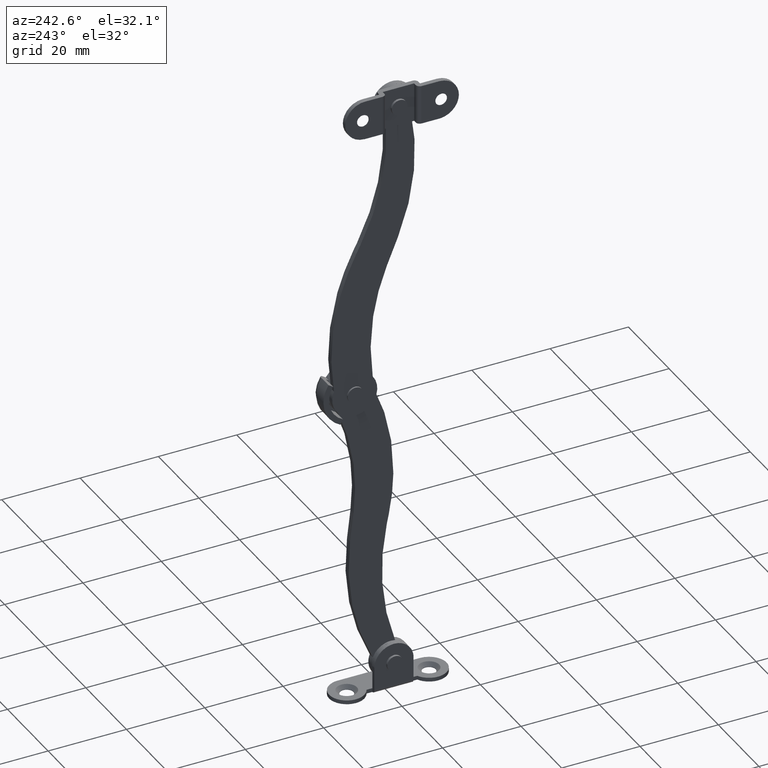
[diagram: clean part render]
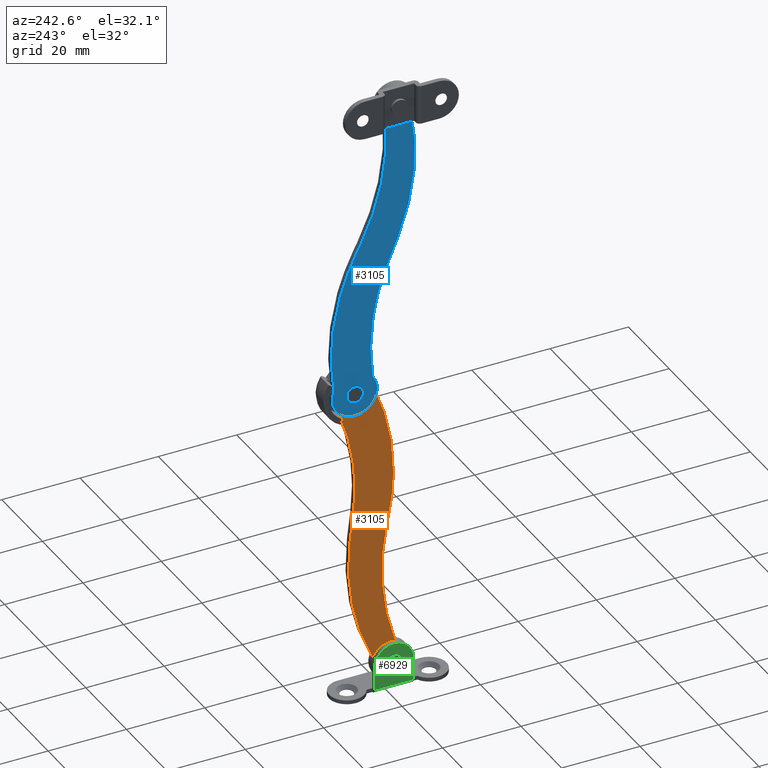
[diagram: same view with three faces highlighted in distinct colors, each labeled with its STEP entity id]
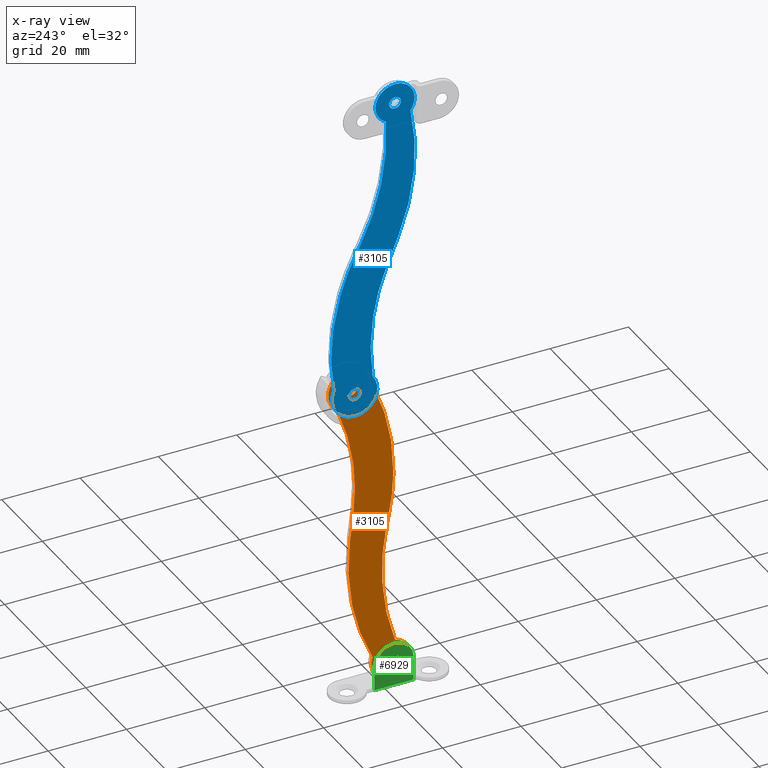
[diagram: x-ray of the same camera — body ghosted, the three highlighted faces saturated]
A machine part, auxiliary view with three faces highlighted in distinct colors.
The next image is the same camera in x-ray (body ghosted, the three faces saturated) — at least one of them is partly hidden behind the body in this view.
Their STEP definitions:

[orange] entity #3105 — the highlighted face is a freeform B-spline surface patch.
#2522=CARTESIAN_POINT('',(3.499999999999951,1.497202197543579,74.908457189238959));
#2523=VERTEX_POINT('',#2522);
#2529=CARTESIAN_POINT('',(3.499999999999950,0.0,73.500029999999995));
#2530=VERTEX_POINT('',#2529);
#2531=CARTESIAN_POINT('',(3.499999999999950,0.0,73.500029999999995));
#2532=CARTESIAN_POINT('',(3.499999999999950,1.411059097603771,73.500029999999981));
#2533=CARTESIAN_POINT('',(3.499999999999950,1.497202197543579,74.908457189238959));
#2541=(BOUNDED_CURVE()B_SPLINE_CURVE(2,(#2531,#2532,#2533),.UNSPECIFIED.,.F.,.U.)B_SPLINE_CURVE_WITH_KNOTS((3,3),(0.500000000000000,0.739332961905738),.UNSPECIFIED.)CURVE()GEOMETRIC_REPRESENTATION_ITEM()RATIONAL_B_SPLINE_CURVE((1.0,0.719603993677084,0.976072040952597))REPRESENTATION_ITEM(''));
#2542=EDGE_CURVE('',#2530,#2523,#2541,.T.);
#2544=CARTESIAN_POINT('',(3.499999999999950,-1.489514289480038,75.177081352535879));
#2545=VERTEX_POINT('',#2544);
#2546=CARTESIAN_POINT('',(3.499999999999951,-1.489514289480038,75.177081352535879));
#2547=CARTESIAN_POINT('',(3.499999999999950,-1.500000000000000,75.088866180034415));
#2548=CARTESIAN_POINT('',(3.499999999999950,-1.500000000000000,75.000029999999995));
#2549=CARTESIAN_POINT('',(3.499999999999949,-1.500000000000000,73.500029999999995));
#2550=CARTESIAN_POINT('',(3.499999999999950,0.0,73.500029999999995));
#2558=(BOUNDED_CURVE()B_SPLINE_CURVE(2,(#2546,#2547,#2548,#2549,#2550),.UNSPECIFIED.,.F.,.U.)B_SPLINE_CURVE_WITH_KNOTS((3,2,3),(0.229562473390671,0.250000000000000,0.500000000000000),.UNSPECIFIED.)CURVE()GEOMETRIC_REPRESENTATION_ITEM()RATIONAL_B_SPLINE_CURVE((0.956026753942933,0.976055948187232,1.0,0.707106781186548,1.0))REPRESENTATION_ITEM(''));
#2559=EDGE_CURVE('',#2545,#2530,#2558,.T.);
#2603=CARTESIAN_POINT('',(3.499999999999950,0.0,76.500029999999995));
#2604=VERTEX_POINT('',#2603);
#2605=CARTESIAN_POINT('',(3.499999999999950,0.0,76.500029999999995));
#2606=CARTESIAN_POINT('',(3.499999999999949,-1.332261787934946,76.500029999999995));
#2607=CARTESIAN_POINT('',(3.499999999999950,-1.489514289480038,75.177081352535879));
#2615=(BOUNDED_CURVE()B_SPLINE_CURVE(2,(#2605,#2606,#2607),.UNSPECIFIED.,.F.,.U.)B_SPLINE_CURVE_WITH_KNOTS((3,3),(0.0,0.229562473390671),.UNSPECIFIED.)CURVE()GEOMETRIC_REPRESENTATION_ITEM()RATIONAL_B_SPLINE_CURVE((1.0,0.731050832999315,0.956026753942933))REPRESENTATION_ITEM(''));
#2616=EDGE_CURVE('',#2604,#2545,#2615,.T.);
#2618=CARTESIAN_POINT('',(3.499999999999950,1.497202197543580,74.908457189238959));
#2619=CARTESIAN_POINT('',(3.499999999999950,1.500000000000000,74.954200853589271));
#2620=CARTESIAN_POINT('',(3.499999999999950,1.500000000000000,75.000029999999995));
#2621=CARTESIAN_POINT('',(3.499999999999949,1.500000000000000,76.500029999999995));
#2622=CARTESIAN_POINT('',(3.499999999999950,0.0,76.500029999999995));
#2630=(BOUNDED_CURVE()B_SPLINE_CURVE(2,(#2618,#2619,#2620,#2621,#2622),.UNSPECIFIED.,.F.,.U.)B_SPLINE_CURVE_WITH_KNOTS((3,2,3),(0.739332961905738,0.750000000000000,1.0),.UNSPECIFIED.)CURVE()GEOMETRIC_REPRESENTATION_ITEM()RATIONAL_B_SPLINE_CURVE((0.976072040952596,0.987502787509463,1.0,0.707106781186548,1.0))REPRESENTATION_ITEM(''));
#2631=EDGE_CURVE('',#2523,#2604,#2630,.T.);
#2708=CARTESIAN_POINT('',(3.499999999999950,11.768045197543380,-0.091572810761035));
#2709=VERTEX_POINT('',#2708);
#2715=CARTESIAN_POINT('',(3.499999999999950,10.270842999999800,-1.499999999999999));
#2716=VERTEX_POINT('',#2715);
#2717=CARTESIAN_POINT('',(3.499999999999950,10.270842999999800,-1.499999999999999));
#2718=CARTESIAN_POINT('',(3.499999999999950,11.681902097603571,-1.499999999999999));
#2719=CARTESIAN_POINT('',(3.499999999999950,11.768045197543380,-0.091572810761035));
#2727=(BOUNDED_CURVE()B_SPLINE_CURVE(2,(#2717,#2718,#2719),.UNSPECIFIED.,.F.,.U.)B_SPLINE_CURVE_WITH_KNOTS((3,3),(0.500000000000000,0.739332961905738),.UNSPECIFIED.)CURVE()GEOMETRIC_REPRESENTATION_ITEM()RATIONAL_B_SPLINE_CURVE((1.0,0.719603993677084,0.976072040952597))REPRESENTATION_ITEM(''));
#2728=EDGE_CURVE('',#2716,#2709,#2727,.T.);
#2730=CARTESIAN_POINT('',(3.499999999999950,8.781328710519759,0.177051352535860));
#2731=VERTEX_POINT('',#2730);
#2732=CARTESIAN_POINT('',(3.499999999999951,8.781328710519759,0.177051352535860));
#2733=CARTESIAN_POINT('',(3.499999999999951,8.770842999999799,0.088836180034409));
#2734=CARTESIAN_POINT('',(3.499999999999950,8.770842999999799,8.881784E-016));
#2735=CARTESIAN_POINT('',(3.499999999999949,8.770842999999799,-1.500000000000000));
#2736=CARTESIAN_POINT('',(3.499999999999950,10.270842999999800,-1.499999999999999));
#2744=(BOUNDED_CURVE()B_SPLINE_CURVE(2,(#2732,#2733,#2734,#2735,#2736),.UNSPECIFIED.,.F.,.U.)B_SPLINE_CURVE_WITH_KNOTS((3,2,3),(0.229562473390672,0.250000000000000,0.500000000000000),.UNSPECIFIED.)CURVE()GEOMETRIC_REPRESENTATION_ITEM()RATIONAL_B_SPLINE_CURVE((0.956026753942936,0.976055948187234,1.0,0.707106781186548,1.0))REPRESENTATION_ITEM(''));
#2745=EDGE_CURVE('',#2731,#2716,#2744,.T.);
#2789=CARTESIAN_POINT('',(3.499999999999950,10.270842999999800,1.500000000000001));
#2790=VERTEX_POINT('',#2789);
#2791=CARTESIAN_POINT('',(3.499999999999950,10.270842999999800,1.500000000000001));
#2792=CARTESIAN_POINT('',(3.499999999999949,8.938581212064841,1.500000000000001));
#2793=CARTESIAN_POINT('',(3.499999999999950,8.781328710519759,0.177051352535860));
#2801=(BOUNDED_CURVE()B_SPLINE_CURVE(2,(#2791,#2792,#2793),.UNSPECIFIED.,.F.,.U.)B_SPLINE_CURVE_WITH_KNOTS((3,3),(0.0,0.229562473390673),.UNSPECIFIED.)CURVE()GEOMETRIC_REPRESENTATION_ITEM()RATIONAL_B_SPLINE_CURVE((1.0,0.731050832999314,0.956026753942936))REPRESENTATION_ITEM(''));
#2802=EDGE_CURVE('',#2790,#2731,#2801,.T.);
#2804=CARTESIAN_POINT('',(3.499999999999950,11.768045197543376,-0.091572810761035));
#2805=CARTESIAN_POINT('',(3.499999999999951,11.770842999999797,-0.045829146410723));
#2806=CARTESIAN_POINT('',(3.499999999999950,11.770842999999800,8.881784E-016));
#2807=CARTESIAN_POINT('',(3.499999999999949,11.770842999999799,1.500000000000001));
#2808=CARTESIAN_POINT('',(3.499999999999950,10.270842999999800,1.500000000000001));
#2816=(BOUNDED_CURVE()B_SPLINE_CURVE(2,(#2804,#2805,#2806,#2807,#2808),.UNSPECIFIED.,.F.,.U.)B_SPLINE_CURVE_WITH_KNOTS((3,2,3),(0.739332961905738,0.750000000000000,1.0),.UNSPECIFIED.)CURVE()GEOMETRIC_REPRESENTATION_ITEM()RATIONAL_B_SPLINE_CURVE((0.976072040952595,0.987502787509463,1.0,0.707106781186548,1.0))REPRESENTATION_ITEM(''));
#2817=EDGE_CURVE('',#2709,#2790,#2816,.T.);
#2972=CARTESIAN_POINT('',(3.500000000000000,-6.141934976142864,84.276608034453659));
#2973=CARTESIAN_POINT('',(3.500000000000000,17.344838028200240,84.276608034453659));
#2974=CARTESIAN_POINT('',(3.500000000000000,-6.141934976142864,-10.032317006579589));
#2975=CARTESIAN_POINT('',(3.500000000000000,17.344838028200240,-10.032317006579589));
#2976=B_SPLINE_SURFACE_WITH_KNOTS('',1,1,((#2972,#2974),(#2973,#2975)),.UNSPECIFIED.,.F.,.F.,.U.,(2,2),(2,2),(0.0,23.486773004343100),(0.0,94.308925041033248),.UNSPECIFIED.);
#2977=CARTESIAN_POINT('',(3.499999999999950,2.050520562920845,32.095773077190451));
#2978=VERTEX_POINT('',#2977);
#2979=CARTESIAN_POINT('',(3.499999999999950,-0.772613999999990,38.943436000000048));
#2980=VERTEX_POINT('',#2979);
#2981=CARTESIAN_POINT('',(3.499999999999950,2.050520562920845,32.095773077190451));
#2982=CARTESIAN_POINT('',(3.499999999999950,-0.772613999999990,38.943436000000048));
#2983=QUASI_UNIFORM_CURVE('',1,(#2981,#2982),.UNSPECIFIED.,.F.,.U.);
#2984=EDGE_CURVE('',#2978,#2980,#2983,.T.);
#2985=ORIENTED_EDGE('',*,*,#2984,.T.);
#2986=CARTESIAN_POINT('',(3.499999999999950,-3.950962553625680,71.935587842914515));
#2987=VERTEX_POINT('',#2986);
#2988=CARTESIAN_POINT('',(3.499999999999950,-3.950962553625613,71.935587842914472));
#2989=CARTESIAN_POINT('',(3.499999999999950,-7.374477571912855,54.956606961310584));
#2990=CARTESIAN_POINT('',(3.499999999999950,-0.772613999999990,38.943436000000048));
#2998=(BOUNDED_CURVE()B_SPLINE_CURVE(2,(#2988,#2989,#2990),.UNSPECIFIED.,.F.,.U.)CURVE()GEOMETRIC_REPRESENTATION_ITEM()QUASI_UNIFORM_CURVE()RATIONAL_B_SPLINE_CURVE((1.0,0.956800705288628,1.0))REPRESENTATION_ITEM(''));
#2999=EDGE_CURVE('',#2987,#2980,#2998,.T.);
#3000=ORIENTED_EDGE('',*,*,#2999,.F.);
#3001=CARTESIAN_POINT('',(3.499999999999950,2.331784033939465,70.577064983255994));
#3002=VERTEX_POINT('',#3001);
#3003=CARTESIAN_POINT('',(3.499999999999950,2.331784033939394,70.577064983256122));
#3004=CARTESIAN_POINT('',(3.499999999999951,5.428741448838198,72.209854238941389));
#3005=CARTESIAN_POINT('',(3.499999999999950,4.953659066012654,75.678491249743530));
#3006=CARTESIAN_POINT('',(3.499999999999951,4.478576683187111,79.147128260545713));
#3007=CARTESIAN_POINT('',(3.499999999999950,1.056639708498980,79.887056178954026));
#3008=CARTESIAN_POINT('',(3.499999999999951,-2.365297266189150,80.626984097362353));
#3009=CARTESIAN_POINT('',(3.499999999999950,-4.230986951245852,77.664493931597946));
#3010=CARTESIAN_POINT('',(3.499999999999951,-6.096676636302556,74.702003765833553));
#3011=CARTESIAN_POINT('',(3.499999999999950,-3.950962553625690,71.935587842914501));
#3019=(BOUNDED_CURVE()B_SPLINE_CURVE(2,(#3003,#3004,#3005,#3006,#3007,#3008,#3009,#3010,#3011),.UNSPECIFIED.,.F.,.U.)B_SPLINE_CURVE_WITH_KNOTS((3,2,2,2,3),(0.0,0.250000000000000,0.500000000000000,0.750000000000000,1.0),.UNSPECIFIED.)CURVE()GEOMETRIC_REPRESENTATION_ITEM()RATIONAL_B_SPLINE_CURVE((1.0,0.819153351722272,1.0,0.819153351722272,1.0,0.819153351722272,1.0,0.819153351722272,1.0))REPRESENTATION_ITEM(''));
#3020=EDGE_CURVE('',#3002,#2987,#3019,.T.);
#3021=ORIENTED_EDGE('',*,*,#3020,.F.);
#3022=CARTESIAN_POINT('',(3.499999999999950,8.788238437924449,39.547561152818197));
#3023=VERTEX_POINT('',#3022);
#3024=CARTESIAN_POINT('',(3.499999999999950,2.331784033939521,70.577064983255994));
#3025=CARTESIAN_POINT('',(3.499999999999950,1.233694848332280,54.162116124947410));
#3026=CARTESIAN_POINT('',(3.499999999999950,8.788238437924512,39.547561152818233));
#3034=(BOUNDED_CURVE()B_SPLINE_CURVE(2,(#3024,#3025,#3026),.UNSPECIFIED.,.F.,.U.)CURVE()GEOMETRIC_REPRESENTATION_ITEM()QUASI_UNIFORM_CURVE()RATIONAL_B_SPLINE_CURVE((1.0,0.963250642647689,1.0))REPRESENTATION_ITEM(''));
#3035=EDGE_CURVE('',#3002,#3023,#3034,.T.);
#3036=ORIENTED_EDGE('',*,*,#3035,.T.);
#3037=CARTESIAN_POINT('',(3.499999999999950,9.916199000000001,37.365477999999953));
#3038=VERTEX_POINT('',#3037);
#3039=CARTESIAN_POINT('',(3.499999999999950,8.788238437924449,39.547561152818197));
#3040=CARTESIAN_POINT('',(3.499999999999950,9.916199000000001,37.365477999999953));
#3041=QUASI_UNIFORM_CURVE('',1,(#3039,#3040),.UNSPECIFIED.,.F.,.U.);
#3042=EDGE_CURVE('',#3023,#3038,#3041,.T.);
#3043=ORIENTED_EDGE('',*,*,#3042,.T.);
#3044=CARTESIAN_POINT('',(3.499999999999950,15.571643782803150,2.228006072934095));
#3045=VERTEX_POINT('',#3044);
#3046=CARTESIAN_POINT('',(3.499999999999950,15.571643782803140,2.228006072934092));
#3047=CARTESIAN_POINT('',(3.499999999999951,18.517461404044337,20.726004585878098));
#3048=CARTESIAN_POINT('',(3.499999999999950,9.916198999999965,37.365477999999932));
#3056=(BOUNDED_CURVE()B_SPLINE_CURVE(2,(#3046,#3047,#3048),.UNSPECIFIED.,.F.,.U.)CURVE()GEOMETRIC_REPRESENTATION_ITEM()QUASI_UNIFORM_CURVE()RATIONAL_B_SPLINE_CURVE((1.0,0.950016428060900,1.0))REPRESENTATION_ITEM(''));
#3057=EDGE_CURVE('',#3045,#3038,#3056,.T.);
#3058=ORIENTED_EDGE('',*,*,#3057,.F.);
#3059=CARTESIAN_POINT('',(3.499999999999950,5.690931915818350,3.476624003396400));
#3060=VERTEX_POINT('',#3059);
#3061=CARTESIAN_POINT('',(3.499999999999950,5.690931915818357,3.476624003396394));
#3062=CARTESIAN_POINT('',(3.499999999999949,2.773698233647095,-0.366377386190532));
#3063=CARTESIAN_POINT('',(3.499999999999950,6.051743201180876,-3.906622183882916));
#3064=CARTESIAN_POINT('',(3.499999999999949,9.329788168714655,-7.446866981575298));
#3065=CARTESIAN_POINT('',(3.499999999999950,13.385475436905100,-4.833380264677850));
#3066=CARTESIAN_POINT('',(3.499999999999949,17.441162705095554,-2.219893547780402));
#3067=CARTESIAN_POINT('',(3.499999999999950,15.571643782803161,2.228006072934101));
#3075=(BOUNDED_CURVE()B_SPLINE_CURVE(2,(#3061,#3062,#3063,#3064,#3065,#3066,#3067),.UNSPECIFIED.,.F.,.U.)B_SPLINE_CURVE_WITH_KNOTS((3,2,2,3),(0.0,0.333333333333333,0.666666666666667,1.0),.UNSPECIFIED.)CURVE()GEOMETRIC_REPRESENTATION_ITEM()RATIONAL_B_SPLINE_CURVE((1.0,0.766044468813316,1.0,0.766044468813316,1.0,0.766044468813316,1.0))REPRESENTATION_ITEM(''));
#3076=EDGE_CURVE('',#3060,#3045,#3075,.T.);
#3077=ORIENTED_EDGE('',*,*,#3076,.F.);
#3078=CARTESIAN_POINT('',(3.499999999999950,5.690931915818350,3.476624003396400));
#3079=CARTESIAN_POINT('',(3.499999999999950,7.759846322789088,18.280902169250226));
#3080=CARTESIAN_POINT('',(3.499999999999950,2.050520562920863,32.095773077190422));
#3088=(BOUNDED_CURVE()B_SPLINE_CURVE(2,(#3078,#3079,#3080),.UNSPECIFIED.,.F.,.U.)CURVE()GEOMETRIC_REPRESENTATION_ITEM()QUASI_UNIFORM_CURVE()RATIONAL_B_SPLINE_CURVE((1.0,0.964994399481614,1.0))REPRESENTATION_ITEM(''));
#3089=EDGE_CURVE('',#3060,#2978,#3088,.T.);
#3090=ORIENTED_EDGE('',*,*,#3089,.T.);
#3091=EDGE_LOOP('',(#2985,#3000,#3021,#3036,#3043,#3058,#3077,#3090));
#3092=FACE_OUTER_BOUND('',#3091,.T.);
#3093=ORIENTED_EDGE('',*,*,#2728,.T.);
#3094=ORIENTED_EDGE('',*,*,#2817,.T.);
#3095=ORIENTED_EDGE('',*,*,#2802,.T.);
#3096=ORIENTED_EDGE('',*,*,#2745,.T.);
#3097=EDGE_LOOP('',(#3093,#3094,#3095,#3096));
#3098=FACE_BOUND('',#3097,.T.);
#3099=ORIENTED_EDGE('',*,*,#2542,.T.);
#3100=ORIENTED_EDGE('',*,*,#2631,.T.);
#3101=ORIENTED_EDGE('',*,*,#2616,.T.);
#3102=ORIENTED_EDGE('',*,*,#2559,.T.);
#3103=EDGE_LOOP('',(#3099,#3100,#3101,#3102));
#3104=FACE_BOUND('',#3103,.T.);
#3105=ADVANCED_FACE('',(#3092,#3098,#3104),#2976,.T.);

[blue] entity #3105 — the highlighted face is a freeform B-spline surface patch.
#2522=CARTESIAN_POINT('',(3.499999999999951,1.497202197543579,74.908457189238959));
#2523=VERTEX_POINT('',#2522);
#2529=CARTESIAN_POINT('',(3.499999999999950,0.0,73.500029999999995));
#2530=VERTEX_POINT('',#2529);
#2531=CARTESIAN_POINT('',(3.499999999999950,0.0,73.500029999999995));
#2532=CARTESIAN_POINT('',(3.499999999999950,1.411059097603771,73.500029999999981));
#2533=CARTESIAN_POINT('',(3.499999999999950,1.497202197543579,74.908457189238959));
#2541=(BOUNDED_CURVE()B_SPLINE_CURVE(2,(#2531,#2532,#2533),.UNSPECIFIED.,.F.,.U.)B_SPLINE_CURVE_WITH_KNOTS((3,3),(0.500000000000000,0.739332961905738),.UNSPECIFIED.)CURVE()GEOMETRIC_REPRESENTATION_ITEM()RATIONAL_B_SPLINE_CURVE((1.0,0.719603993677084,0.976072040952597))REPRESENTATION_ITEM(''));
#2542=EDGE_CURVE('',#2530,#2523,#2541,.T.);
#2544=CARTESIAN_POINT('',(3.499999999999950,-1.489514289480038,75.177081352535879));
#2545=VERTEX_POINT('',#2544);
#2546=CARTESIAN_POINT('',(3.499999999999951,-1.489514289480038,75.177081352535879));
#2547=CARTESIAN_POINT('',(3.499999999999950,-1.500000000000000,75.088866180034415));
#2548=CARTESIAN_POINT('',(3.499999999999950,-1.500000000000000,75.000029999999995));
#2549=CARTESIAN_POINT('',(3.499999999999949,-1.500000000000000,73.500029999999995));
#2550=CARTESIAN_POINT('',(3.499999999999950,0.0,73.500029999999995));
#2558=(BOUNDED_CURVE()B_SPLINE_CURVE(2,(#2546,#2547,#2548,#2549,#2550),.UNSPECIFIED.,.F.,.U.)B_SPLINE_CURVE_WITH_KNOTS((3,2,3),(0.229562473390671,0.250000000000000,0.500000000000000),.UNSPECIFIED.)CURVE()GEOMETRIC_REPRESENTATION_ITEM()RATIONAL_B_SPLINE_CURVE((0.956026753942933,0.976055948187232,1.0,0.707106781186548,1.0))REPRESENTATION_ITEM(''));
#2559=EDGE_CURVE('',#2545,#2530,#2558,.T.);
#2603=CARTESIAN_POINT('',(3.499999999999950,0.0,76.500029999999995));
#2604=VERTEX_POINT('',#2603);
#2605=CARTESIAN_POINT('',(3.499999999999950,0.0,76.500029999999995));
#2606=CARTESIAN_POINT('',(3.499999999999949,-1.332261787934946,76.500029999999995));
#2607=CARTESIAN_POINT('',(3.499999999999950,-1.489514289480038,75.177081352535879));
#2615=(BOUNDED_CURVE()B_SPLINE_CURVE(2,(#2605,#2606,#2607),.UNSPECIFIED.,.F.,.U.)B_SPLINE_CURVE_WITH_KNOTS((3,3),(0.0,0.229562473390671),.UNSPECIFIED.)CURVE()GEOMETRIC_REPRESENTATION_ITEM()RATIONAL_B_SPLINE_CURVE((1.0,0.731050832999315,0.956026753942933))REPRESENTATION_ITEM(''));
#2616=EDGE_CURVE('',#2604,#2545,#2615,.T.);
#2618=CARTESIAN_POINT('',(3.499999999999950,1.497202197543580,74.908457189238959));
#2619=CARTESIAN_POINT('',(3.499999999999950,1.500000000000000,74.954200853589271));
#2620=CARTESIAN_POINT('',(3.499999999999950,1.500000000000000,75.000029999999995));
#2621=CARTESIAN_POINT('',(3.499999999999949,1.500000000000000,76.500029999999995));
#2622=CARTESIAN_POINT('',(3.499999999999950,0.0,76.500029999999995));
#2630=(BOUNDED_CURVE()B_SPLINE_CURVE(2,(#2618,#2619,#2620,#2621,#2622),.UNSPECIFIED.,.F.,.U.)B_SPLINE_CURVE_WITH_KNOTS((3,2,3),(0.739332961905738,0.750000000000000,1.0),.UNSPECIFIED.)CURVE()GEOMETRIC_REPRESENTATION_ITEM()RATIONAL_B_SPLINE_CURVE((0.976072040952596,0.987502787509463,1.0,0.707106781186548,1.0))REPRESENTATION_ITEM(''));
#2631=EDGE_CURVE('',#2523,#2604,#2630,.T.);
#2708=CARTESIAN_POINT('',(3.499999999999950,11.768045197543380,-0.091572810761035));
#2709=VERTEX_POINT('',#2708);
#2715=CARTESIAN_POINT('',(3.499999999999950,10.270842999999800,-1.499999999999999));
#2716=VERTEX_POINT('',#2715);
#2717=CARTESIAN_POINT('',(3.499999999999950,10.270842999999800,-1.499999999999999));
#2718=CARTESIAN_POINT('',(3.499999999999950,11.681902097603571,-1.499999999999999));
#2719=CARTESIAN_POINT('',(3.499999999999950,11.768045197543380,-0.091572810761035));
#2727=(BOUNDED_CURVE()B_SPLINE_CURVE(2,(#2717,#2718,#2719),.UNSPECIFIED.,.F.,.U.)B_SPLINE_CURVE_WITH_KNOTS((3,3),(0.500000000000000,0.739332961905738),.UNSPECIFIED.)CURVE()GEOMETRIC_REPRESENTATION_ITEM()RATIONAL_B_SPLINE_CURVE((1.0,0.719603993677084,0.976072040952597))REPRESENTATION_ITEM(''));
#2728=EDGE_CURVE('',#2716,#2709,#2727,.T.);
#2730=CARTESIAN_POINT('',(3.499999999999950,8.781328710519759,0.177051352535860));
#2731=VERTEX_POINT('',#2730);
#2732=CARTESIAN_POINT('',(3.499999999999951,8.781328710519759,0.177051352535860));
#2733=CARTESIAN_POINT('',(3.499999999999951,8.770842999999799,0.088836180034409));
#2734=CARTESIAN_POINT('',(3.499999999999950,8.770842999999799,8.881784E-016));
#2735=CARTESIAN_POINT('',(3.499999999999949,8.770842999999799,-1.500000000000000));
#2736=CARTESIAN_POINT('',(3.499999999999950,10.270842999999800,-1.499999999999999));
#2744=(BOUNDED_CURVE()B_SPLINE_CURVE(2,(#2732,#2733,#2734,#2735,#2736),.UNSPECIFIED.,.F.,.U.)B_SPLINE_CURVE_WITH_KNOTS((3,2,3),(0.229562473390672,0.250000000000000,0.500000000000000),.UNSPECIFIED.)CURVE()GEOMETRIC_REPRESENTATION_ITEM()RATIONAL_B_SPLINE_CURVE((0.956026753942936,0.976055948187234,1.0,0.707106781186548,1.0))REPRESENTATION_ITEM(''));
#2745=EDGE_CURVE('',#2731,#2716,#2744,.T.);
#2789=CARTESIAN_POINT('',(3.499999999999950,10.270842999999800,1.500000000000001));
#2790=VERTEX_POINT('',#2789);
#2791=CARTESIAN_POINT('',(3.499999999999950,10.270842999999800,1.500000000000001));
#2792=CARTESIAN_POINT('',(3.499999999999949,8.938581212064841,1.500000000000001));
#2793=CARTESIAN_POINT('',(3.499999999999950,8.781328710519759,0.177051352535860));
#2801=(BOUNDED_CURVE()B_SPLINE_CURVE(2,(#2791,#2792,#2793),.UNSPECIFIED.,.F.,.U.)B_SPLINE_CURVE_WITH_KNOTS((3,3),(0.0,0.229562473390673),.UNSPECIFIED.)CURVE()GEOMETRIC_REPRESENTATION_ITEM()RATIONAL_B_SPLINE_CURVE((1.0,0.731050832999314,0.956026753942936))REPRESENTATION_ITEM(''));
#2802=EDGE_CURVE('',#2790,#2731,#2801,.T.);
#2804=CARTESIAN_POINT('',(3.499999999999950,11.768045197543376,-0.091572810761035));
#2805=CARTESIAN_POINT('',(3.499999999999951,11.770842999999797,-0.045829146410723));
#2806=CARTESIAN_POINT('',(3.499999999999950,11.770842999999800,8.881784E-016));
#2807=CARTESIAN_POINT('',(3.499999999999949,11.770842999999799,1.500000000000001));
#2808=CARTESIAN_POINT('',(3.499999999999950,10.270842999999800,1.500000000000001));
#2816=(BOUNDED_CURVE()B_SPLINE_CURVE(2,(#2804,#2805,#2806,#2807,#2808),.UNSPECIFIED.,.F.,.U.)B_SPLINE_CURVE_WITH_KNOTS((3,2,3),(0.739332961905738,0.750000000000000,1.0),.UNSPECIFIED.)CURVE()GEOMETRIC_REPRESENTATION_ITEM()RATIONAL_B_SPLINE_CURVE((0.976072040952595,0.987502787509463,1.0,0.707106781186548,1.0))REPRESENTATION_ITEM(''));
#2817=EDGE_CURVE('',#2709,#2790,#2816,.T.);
#2972=CARTESIAN_POINT('',(3.500000000000000,-6.141934976142864,84.276608034453659));
#2973=CARTESIAN_POINT('',(3.500000000000000,17.344838028200240,84.276608034453659));
#2974=CARTESIAN_POINT('',(3.500000000000000,-6.141934976142864,-10.032317006579589));
#2975=CARTESIAN_POINT('',(3.500000000000000,17.344838028200240,-10.032317006579589));
#2976=B_SPLINE_SURFACE_WITH_KNOTS('',1,1,((#2972,#2974),(#2973,#2975)),.UNSPECIFIED.,.F.,.F.,.U.,(2,2),(2,2),(0.0,23.486773004343100),(0.0,94.308925041033248),.UNSPECIFIED.);
#2977=CARTESIAN_POINT('',(3.499999999999950,2.050520562920845,32.095773077190451));
#2978=VERTEX_POINT('',#2977);
#2979=CARTESIAN_POINT('',(3.499999999999950,-0.772613999999990,38.943436000000048));
#2980=VERTEX_POINT('',#2979);
#2981=CARTESIAN_POINT('',(3.499999999999950,2.050520562920845,32.095773077190451));
#2982=CARTESIAN_POINT('',(3.499999999999950,-0.772613999999990,38.943436000000048));
#2983=QUASI_UNIFORM_CURVE('',1,(#2981,#2982),.UNSPECIFIED.,.F.,.U.);
#2984=EDGE_CURVE('',#2978,#2980,#2983,.T.);
#2985=ORIENTED_EDGE('',*,*,#2984,.T.);
#2986=CARTESIAN_POINT('',(3.499999999999950,-3.950962553625680,71.935587842914515));
#2987=VERTEX_POINT('',#2986);
#2988=CARTESIAN_POINT('',(3.499999999999950,-3.950962553625613,71.935587842914472));
#2989=CARTESIAN_POINT('',(3.499999999999950,-7.374477571912855,54.956606961310584));
#2990=CARTESIAN_POINT('',(3.499999999999950,-0.772613999999990,38.943436000000048));
#2998=(BOUNDED_CURVE()B_SPLINE_CURVE(2,(#2988,#2989,#2990),.UNSPECIFIED.,.F.,.U.)CURVE()GEOMETRIC_REPRESENTATION_ITEM()QUASI_UNIFORM_CURVE()RATIONAL_B_SPLINE_CURVE((1.0,0.956800705288628,1.0))REPRESENTATION_ITEM(''));
#2999=EDGE_CURVE('',#2987,#2980,#2998,.T.);
#3000=ORIENTED_EDGE('',*,*,#2999,.F.);
#3001=CARTESIAN_POINT('',(3.499999999999950,2.331784033939465,70.577064983255994));
#3002=VERTEX_POINT('',#3001);
#3003=CARTESIAN_POINT('',(3.499999999999950,2.331784033939394,70.577064983256122));
#3004=CARTESIAN_POINT('',(3.499999999999951,5.428741448838198,72.209854238941389));
#3005=CARTESIAN_POINT('',(3.499999999999950,4.953659066012654,75.678491249743530));
#3006=CARTESIAN_POINT('',(3.499999999999951,4.478576683187111,79.147128260545713));
#3007=CARTESIAN_POINT('',(3.499999999999950,1.056639708498980,79.887056178954026));
#3008=CARTESIAN_POINT('',(3.499999999999951,-2.365297266189150,80.626984097362353));
#3009=CARTESIAN_POINT('',(3.499999999999950,-4.230986951245852,77.664493931597946));
#3010=CARTESIAN_POINT('',(3.499999999999951,-6.096676636302556,74.702003765833553));
#3011=CARTESIAN_POINT('',(3.499999999999950,-3.950962553625690,71.935587842914501));
#3019=(BOUNDED_CURVE()B_SPLINE_CURVE(2,(#3003,#3004,#3005,#3006,#3007,#3008,#3009,#3010,#3011),.UNSPECIFIED.,.F.,.U.)B_SPLINE_CURVE_WITH_KNOTS((3,2,2,2,3),(0.0,0.250000000000000,0.500000000000000,0.750000000000000,1.0),.UNSPECIFIED.)CURVE()GEOMETRIC_REPRESENTATION_ITEM()RATIONAL_B_SPLINE_CURVE((1.0,0.819153351722272,1.0,0.819153351722272,1.0,0.819153351722272,1.0,0.819153351722272,1.0))REPRESENTATION_ITEM(''));
#3020=EDGE_CURVE('',#3002,#2987,#3019,.T.);
#3021=ORIENTED_EDGE('',*,*,#3020,.F.);
#3022=CARTESIAN_POINT('',(3.499999999999950,8.788238437924449,39.547561152818197));
#3023=VERTEX_POINT('',#3022);
#3024=CARTESIAN_POINT('',(3.499999999999950,2.331784033939521,70.577064983255994));
#3025=CARTESIAN_POINT('',(3.499999999999950,1.233694848332280,54.162116124947410));
#3026=CARTESIAN_POINT('',(3.499999999999950,8.788238437924512,39.547561152818233));
#3034=(BOUNDED_CURVE()B_SPLINE_CURVE(2,(#3024,#3025,#3026),.UNSPECIFIED.,.F.,.U.)CURVE()GEOMETRIC_REPRESENTATION_ITEM()QUASI_UNIFORM_CURVE()RATIONAL_B_SPLINE_CURVE((1.0,0.963250642647689,1.0))REPRESENTATION_ITEM(''));
#3035=EDGE_CURVE('',#3002,#3023,#3034,.T.);
#3036=ORIENTED_EDGE('',*,*,#3035,.T.);
#3037=CARTESIAN_POINT('',(3.499999999999950,9.916199000000001,37.365477999999953));
#3038=VERTEX_POINT('',#3037);
#3039=CARTESIAN_POINT('',(3.499999999999950,8.788238437924449,39.547561152818197));
#3040=CARTESIAN_POINT('',(3.499999999999950,9.916199000000001,37.365477999999953));
#3041=QUASI_UNIFORM_CURVE('',1,(#3039,#3040),.UNSPECIFIED.,.F.,.U.);
#3042=EDGE_CURVE('',#3023,#3038,#3041,.T.);
#3043=ORIENTED_EDGE('',*,*,#3042,.T.);
#3044=CARTESIAN_POINT('',(3.499999999999950,15.571643782803150,2.228006072934095));
#3045=VERTEX_POINT('',#3044);
#3046=CARTESIAN_POINT('',(3.499999999999950,15.571643782803140,2.228006072934092));
#3047=CARTESIAN_POINT('',(3.499999999999951,18.517461404044337,20.726004585878098));
#3048=CARTESIAN_POINT('',(3.499999999999950,9.916198999999965,37.365477999999932));
#3056=(BOUNDED_CURVE()B_SPLINE_CURVE(2,(#3046,#3047,#3048),.UNSPECIFIED.,.F.,.U.)CURVE()GEOMETRIC_REPRESENTATION_ITEM()QUASI_UNIFORM_CURVE()RATIONAL_B_SPLINE_CURVE((1.0,0.950016428060900,1.0))REPRESENTATION_ITEM(''));
#3057=EDGE_CURVE('',#3045,#3038,#3056,.T.);
#3058=ORIENTED_EDGE('',*,*,#3057,.F.);
#3059=CARTESIAN_POINT('',(3.499999999999950,5.690931915818350,3.476624003396400));
#3060=VERTEX_POINT('',#3059);
#3061=CARTESIAN_POINT('',(3.499999999999950,5.690931915818357,3.476624003396394));
#3062=CARTESIAN_POINT('',(3.499999999999949,2.773698233647095,-0.366377386190532));
#3063=CARTESIAN_POINT('',(3.499999999999950,6.051743201180876,-3.906622183882916));
#3064=CARTESIAN_POINT('',(3.499999999999949,9.329788168714655,-7.446866981575298));
#3065=CARTESIAN_POINT('',(3.499999999999950,13.385475436905100,-4.833380264677850));
#3066=CARTESIAN_POINT('',(3.499999999999949,17.441162705095554,-2.219893547780402));
#3067=CARTESIAN_POINT('',(3.499999999999950,15.571643782803161,2.228006072934101));
#3075=(BOUNDED_CURVE()B_SPLINE_CURVE(2,(#3061,#3062,#3063,#3064,#3065,#3066,#3067),.UNSPECIFIED.,.F.,.U.)B_SPLINE_CURVE_WITH_KNOTS((3,2,2,3),(0.0,0.333333333333333,0.666666666666667,1.0),.UNSPECIFIED.)CURVE()GEOMETRIC_REPRESENTATION_ITEM()RATIONAL_B_SPLINE_CURVE((1.0,0.766044468813316,1.0,0.766044468813316,1.0,0.766044468813316,1.0))REPRESENTATION_ITEM(''));
#3076=EDGE_CURVE('',#3060,#3045,#3075,.T.);
#3077=ORIENTED_EDGE('',*,*,#3076,.F.);
#3078=CARTESIAN_POINT('',(3.499999999999950,5.690931915818350,3.476624003396400));
#3079=CARTESIAN_POINT('',(3.499999999999950,7.759846322789088,18.280902169250226));
#3080=CARTESIAN_POINT('',(3.499999999999950,2.050520562920863,32.095773077190422));
#3088=(BOUNDED_CURVE()B_SPLINE_CURVE(2,(#3078,#3079,#3080),.UNSPECIFIED.,.F.,.U.)CURVE()GEOMETRIC_REPRESENTATION_ITEM()QUASI_UNIFORM_CURVE()RATIONAL_B_SPLINE_CURVE((1.0,0.964994399481614,1.0))REPRESENTATION_ITEM(''));
#3089=EDGE_CURVE('',#3060,#2978,#3088,.T.);
#3090=ORIENTED_EDGE('',*,*,#3089,.T.);
#3091=EDGE_LOOP('',(#2985,#3000,#3021,#3036,#3043,#3058,#3077,#3090));
#3092=FACE_OUTER_BOUND('',#3091,.T.);
#3093=ORIENTED_EDGE('',*,*,#2728,.T.);
#3094=ORIENTED_EDGE('',*,*,#2817,.T.);
#3095=ORIENTED_EDGE('',*,*,#2802,.T.);
#3096=ORIENTED_EDGE('',*,*,#2745,.T.);
#3097=EDGE_LOOP('',(#3093,#3094,#3095,#3096));
#3098=FACE_BOUND('',#3097,.T.);
#3099=ORIENTED_EDGE('',*,*,#2542,.T.);
#3100=ORIENTED_EDGE('',*,*,#2631,.T.);
#3101=ORIENTED_EDGE('',*,*,#2616,.T.);
#3102=ORIENTED_EDGE('',*,*,#2559,.T.);
#3103=EDGE_LOOP('',(#3099,#3100,#3101,#3102));
#3104=FACE_BOUND('',#3103,.T.);
#3105=ADVANCED_FACE('',(#3092,#3098,#3104),#2976,.T.);

[green] entity #6929 — the highlighted face is a freeform B-spline surface patch.
#5646=CARTESIAN_POINT('',(4.0,1.497202197543579,-75.091572810761051));
#5647=VERTEX_POINT('',#5646);
#5653=CARTESIAN_POINT('',(4.0,0.0,-76.500000000000000));
#5654=VERTEX_POINT('',#5653);
#5655=CARTESIAN_POINT('',(4.0,0.0,-76.500000000000000));
#5656=CARTESIAN_POINT('',(4.000000000000001,1.411059097603735,-76.500000000000000));
#5657=CARTESIAN_POINT('',(4.0,1.497202197543579,-75.091572810761065));
#5665=(BOUNDED_CURVE()B_SPLINE_CURVE(2,(#5655,#5656,#5657),.UNSPECIFIED.,.F.,.U.)B_SPLINE_CURVE_WITH_KNOTS((3,3),(0.500000000000000,0.739332961905734),.UNSPECIFIED.)CURVE()GEOMETRIC_REPRESENTATION_ITEM()RATIONAL_B_SPLINE_CURVE((1.0,0.719603993677089,0.976072040952587))REPRESENTATION_ITEM(''));
#5666=EDGE_CURVE('',#5654,#5647,#5665,.T.);
#5668=CARTESIAN_POINT('',(4.0,-1.489514289480037,-74.822948647464131));
#5669=VERTEX_POINT('',#5668);
#5670=CARTESIAN_POINT('',(4.0,-1.489514289480037,-74.822948647464131));
#5671=CARTESIAN_POINT('',(4.000000000000001,-1.500000000000000,-74.911163819965580));
#5672=CARTESIAN_POINT('',(4.0,-1.500000000000000,-75.0));
#5673=CARTESIAN_POINT('',(4.000000000000000,-1.500000000000000,-76.500000000000000));
#5674=CARTESIAN_POINT('',(4.0,0.0,-76.500000000000000));
#5682=(BOUNDED_CURVE()B_SPLINE_CURVE(2,(#5670,#5671,#5672,#5673,#5674),.UNSPECIFIED.,.F.,.U.)B_SPLINE_CURVE_WITH_KNOTS((3,2,3),(0.229562473390670,0.250000000000000,0.500000000000000),.UNSPECIFIED.)CURVE()GEOMETRIC_REPRESENTATION_ITEM()RATIONAL_B_SPLINE_CURVE((0.956026753942931,0.976055948187231,1.0,0.707106781186548,1.0))REPRESENTATION_ITEM(''));
#5683=EDGE_CURVE('',#5669,#5654,#5682,.T.);
#5727=CARTESIAN_POINT('',(4.0,0.0,-73.500000000000000));
#5728=VERTEX_POINT('',#5727);
#5729=CARTESIAN_POINT('',(4.0,0.0,-73.500000000000000));
#5730=CARTESIAN_POINT('',(4.0,-1.332261787934939,-73.500000000000014));
#5731=CARTESIAN_POINT('',(4.000000000000001,-1.489514289480037,-74.822948647464131));
#5739=(BOUNDED_CURVE()B_SPLINE_CURVE(2,(#5729,#5730,#5731),.UNSPECIFIED.,.F.,.U.)B_SPLINE_CURVE_WITH_KNOTS((3,3),(0.0,0.229562473390670),.UNSPECIFIED.)CURVE()GEOMETRIC_REPRESENTATION_ITEM()RATIONAL_B_SPLINE_CURVE((1.0,0.731050832999316,0.956026753942932))REPRESENTATION_ITEM(''));
#5740=EDGE_CURVE('',#5728,#5669,#5739,.T.);
#5742=CARTESIAN_POINT('',(4.000000000000000,1.497202197543579,-75.091572810761051));
#5743=CARTESIAN_POINT('',(4.0,1.500000000000000,-75.045829146410739));
#5744=CARTESIAN_POINT('',(4.0,1.500000000000000,-75.0));
#5745=CARTESIAN_POINT('',(4.000000000000000,1.500000000000000,-73.500000000000000));
#5746=CARTESIAN_POINT('',(4.0,0.0,-73.500000000000000));
#5754=(BOUNDED_CURVE()B_SPLINE_CURVE(2,(#5742,#5743,#5744,#5745,#5746),.UNSPECIFIED.,.F.,.U.)B_SPLINE_CURVE_WITH_KNOTS((3,2,3),(0.739332961905735,0.750000000000000,1.0),.UNSPECIFIED.)CURVE()GEOMETRIC_REPRESENTATION_ITEM()RATIONAL_B_SPLINE_CURVE((0.976072040952590,0.987502787509460,1.0,0.707106781186548,1.0))REPRESENTATION_ITEM(''));
#5755=EDGE_CURVE('',#5647,#5728,#5754,.T.);
#6454=CARTESIAN_POINT('',(4.0,-5.0,-81.0));
#6455=VERTEX_POINT('',#6454);
#6471=CARTESIAN_POINT('',(4.0,5.0,-81.0));
#6472=VERTEX_POINT('',#6471);
#6473=CARTESIAN_POINT('',(4.0,5.0,-81.0));
#6474=CARTESIAN_POINT('',(4.0,-5.0,-81.0));
#6475=QUASI_UNIFORM_CURVE('',1,(#6473,#6474),.UNSPECIFIED.,.F.,.U.);
#6476=EDGE_CURVE('',#6472,#6455,#6475,.T.);
#6538=CARTESIAN_POINT('',(4.0,5.0,-75.0));
#6539=VERTEX_POINT('',#6538);
#6545=CARTESIAN_POINT('',(4.0,-5.0,-75.0));
#6546=VERTEX_POINT('',#6545);
#6547=CARTESIAN_POINT('',(4.0,5.0,-75.0));
#6548=CARTESIAN_POINT('',(4.000000000000000,5.000000000000001,-69.999999999999986));
#6549=CARTESIAN_POINT('',(4.0,0.0,-69.999999999999986));
#6550=CARTESIAN_POINT('',(4.000000000000000,-5.000000000000001,-69.999999999999986));
#6551=CARTESIAN_POINT('',(4.0,-5.0,-75.0));
#6559=(BOUNDED_CURVE()B_SPLINE_CURVE(2,(#6547,#6548,#6549,#6550,#6551),.UNSPECIFIED.,.F.,.U.)B_SPLINE_CURVE_WITH_KNOTS((3,2,3),(0.0,0.500000000000000,1.0),.UNSPECIFIED.)CURVE()GEOMETRIC_REPRESENTATION_ITEM()RATIONAL_B_SPLINE_CURVE((1.0,0.707106781186548,1.0,0.707106781186548,1.0))REPRESENTATION_ITEM(''));
#6560=EDGE_CURVE('',#6539,#6546,#6559,.T.);
#6794=CARTESIAN_POINT('',(4.0,5.0,-81.0));
#6795=CARTESIAN_POINT('',(4.0,5.0,-75.0));
#6796=QUASI_UNIFORM_CURVE('',1,(#6794,#6795),.UNSPECIFIED.,.F.,.U.);
#6797=EDGE_CURVE('',#6472,#6539,#6796,.T.);
#6878=CARTESIAN_POINT('',(4.0,-5.0,-81.0));
#6879=CARTESIAN_POINT('',(4.0,-5.0,-75.0));
#6880=QUASI_UNIFORM_CURVE('',1,(#6878,#6879),.UNSPECIFIED.,.F.,.U.);
#6881=EDGE_CURVE('',#6455,#6546,#6880,.T.);
#6912=CARTESIAN_POINT('',(4.0,-5.499499980618060,-69.450550021320666));
#6913=CARTESIAN_POINT('',(4.0,-5.499499980618060,-81.549450273722840));
#6914=CARTESIAN_POINT('',(4.0,5.499500248838961,-69.450550021320666));
#6915=CARTESIAN_POINT('',(4.0,5.499500248838961,-81.549450273722840));
#6916=B_SPLINE_SURFACE_WITH_KNOTS('',1,1,((#6912,#6914),(#6913,#6915)),.UNSPECIFIED.,.F.,.F.,.U.,(2,2),(2,2),(0.0,12.098900252402171),(0.0,10.999000229457019),.UNSPECIFIED.);
#6917=ORIENTED_EDGE('',*,*,#6797,.F.);
#6918=ORIENTED_EDGE('',*,*,#6476,.T.);
#6919=ORIENTED_EDGE('',*,*,#6881,.T.);
#6920=ORIENTED_EDGE('',*,*,#6560,.F.);
#6921=EDGE_LOOP('',(#6917,#6918,#6919,#6920));
#6922=FACE_OUTER_BOUND('',#6921,.T.);
#6923=ORIENTED_EDGE('',*,*,#5666,.T.);
#6924=ORIENTED_EDGE('',*,*,#5755,.T.);
#6925=ORIENTED_EDGE('',*,*,#5740,.T.);
#6926=ORIENTED_EDGE('',*,*,#5683,.T.);
#6927=EDGE_LOOP('',(#6923,#6924,#6925,#6926));
#6928=FACE_BOUND('',#6927,.T.);
#6929=ADVANCED_FACE('',(#6922,#6928),#6916,.F.);